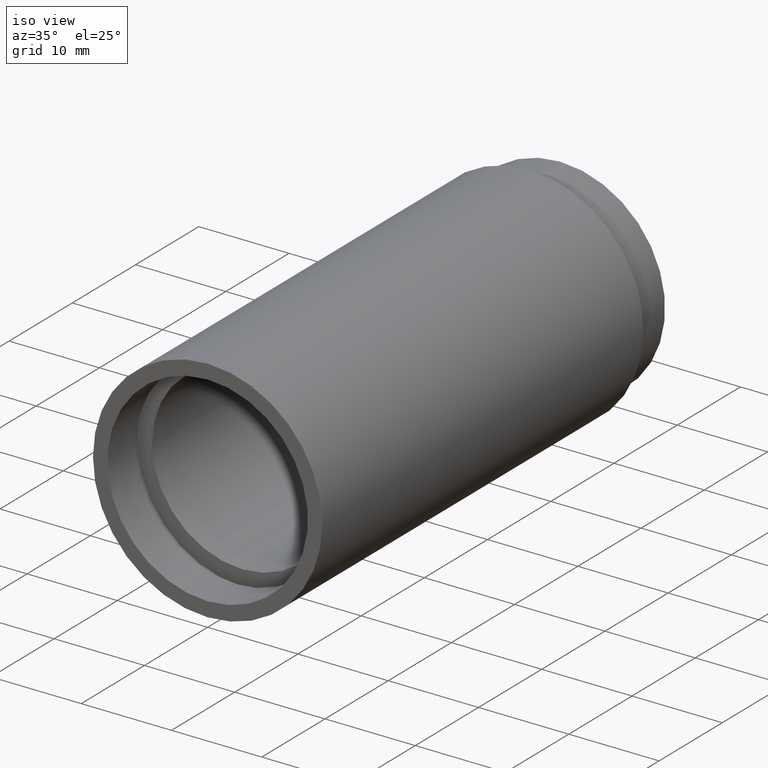
[diagram: clean part render]
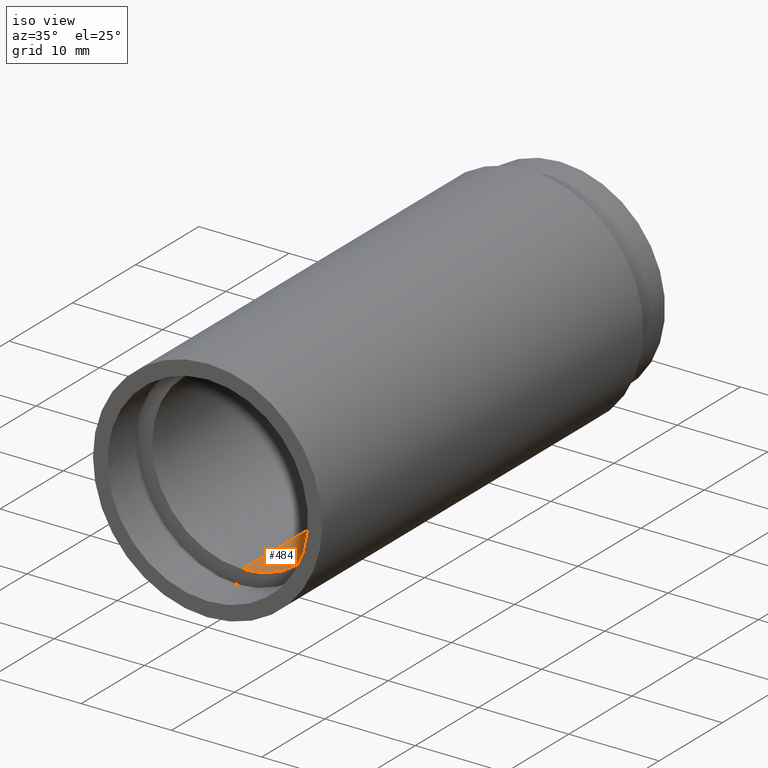
[diagram: same view with one face highlighted and labeled with its STEP entity id]
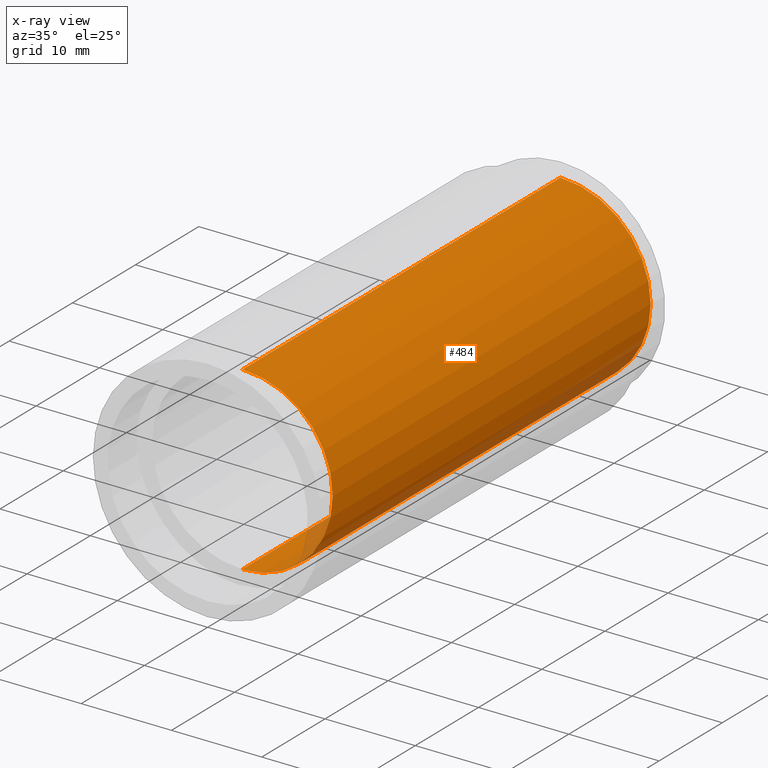
[diagram: x-ray of the same camera — body ghosted, the highlighted face saturated]
A machine part, iso view. The second image highlights one B-rep face of the part: STEP entity #484.
The next image is the same camera in x-ray: the body ghosted, the highlighted face saturated — about 5% of this face is hidden behind the body in this view.
In plain terms, the highlighted cylindrical surface (partial cylindrical patch) has radius 10 mm, axis along (-0, 1, -0).
Its self-contained STEP definition (entity closure, byte-faithful):
#71 = DIRECTION ( 'NONE',  ( -0.0000000000000000000, 1.000000000000000000, -0.0000000000000000000 ) ) ;
#98 = CIRCLE ( 'NONE', #437, 10.00000000000002000 ) ;
#100 = AXIS2_PLACEMENT_3D ( 'NONE', #161, #301, #252 ) ;
#108 = LINE ( 'NONE', #223, #478 ) ;
#126 = EDGE_CURVE ( 'NONE', #238, #365, #108, .T. ) ;
#152 = ORIENTED_EDGE ( 'NONE', *, *, #477, .T. ) ;
#161 = CARTESIAN_POINT ( 'NONE',  ( 0.0000000000000000000, 5.499999999999976900, 0.0000000000000000000 ) ) ;
#162 = DIRECTION ( 'NONE',  ( -0.0000000000000000000, 1.000000000000000000, -0.0000000000000000000 ) ) ;
#194 = ORIENTED_EDGE ( 'NONE', *, *, #586, .F. ) ;
#198 = ORIENTED_EDGE ( 'NONE', *, *, #126, .F. ) ;
#203 = CIRCLE ( 'NONE', #100, 10.00000000000002000 ) ;
#219 = DIRECTION ( 'NONE',  ( 0.0000000000000000000, 0.0000000000000000000, 1.000000000000000000 ) ) ;
#220 = CARTESIAN_POINT ( 'NONE',  ( 1.224646799147355400E-015, 55.79999999999999000, -10.00000000000002000 ) ) ;
#223 = CARTESIAN_POINT ( 'NONE',  ( 1.224646799147355400E-015, 161.3761669434274500, -10.00000000000002000 ) ) ;
#228 = DIRECTION ( 'NONE',  ( -0.0000000000000000000, 1.000000000000000000, -0.0000000000000000000 ) ) ;
#238 = VERTEX_POINT ( 'NONE', #239 ) ;
#239 = CARTESIAN_POINT ( 'NONE',  ( 1.224646799147355400E-015, 5.499999999999976900, -10.00000000000002000 ) ) ;
#252 = DIRECTION ( 'NONE',  ( 0.0000000000000000000, 0.0000000000000000000, 1.000000000000000000 ) ) ;
#257 = EDGE_CURVE ( 'NONE', #351, #435, #436, .T. ) ;
#301 = DIRECTION ( 'NONE',  ( -0.0000000000000000000, 1.000000000000000000, -0.0000000000000000000 ) ) ;
#351 = VERTEX_POINT ( 'NONE', #499 ) ;
#365 = VERTEX_POINT ( 'NONE', #220 ) ;
#406 = CARTESIAN_POINT ( 'NONE',  ( 0.0000000000000000000, 55.79999999999999000, 0.0000000000000000000 ) ) ;
#435 = VERTEX_POINT ( 'NONE', #540 ) ;
#436 = LINE ( 'NONE', #466, #542 ) ;
#437 = AXIS2_PLACEMENT_3D ( 'NONE', #406, #162, #500 ) ;
#440 = FACE_OUTER_BOUND ( 'NONE', #519, .T. ) ;
#466 = CARTESIAN_POINT ( 'NONE',  ( 0.0000000000000000000, 161.3761669434274500, 10.00000000000002000 ) ) ;
#477 = EDGE_CURVE ( 'NONE', #435, #365, #98, .T. ) ;
#478 = VECTOR ( 'NONE', #552, 1000.000000000000000 ) ;
#484 = ADVANCED_FACE ( 'NONE', ( #440 ), #493, .F. ) ;
#489 = AXIS2_PLACEMENT_3D ( 'NONE', #550, #71, #219 ) ;
#493 = CYLINDRICAL_SURFACE ( 'NONE', #489, 10.00000000000002000 ) ;
#499 = CARTESIAN_POINT ( 'NONE',  ( 0.0000000000000000000, 5.499999999999976900, 10.00000000000002000 ) ) ;
#500 = DIRECTION ( 'NONE',  ( 0.0000000000000000000, 0.0000000000000000000, 1.000000000000000000 ) ) ;
#519 = EDGE_LOOP ( 'NONE', ( #198, #194, #580, #152 ) ) ;
#540 = CARTESIAN_POINT ( 'NONE',  ( 0.0000000000000000000, 55.79999999999999000, 10.00000000000002000 ) ) ;
#542 = VECTOR ( 'NONE', #228, 1000.000000000000000 ) ;
#550 = CARTESIAN_POINT ( 'NONE',  ( 0.0000000000000000000, 161.3761669434274500, 0.0000000000000000000 ) ) ;
#552 = DIRECTION ( 'NONE',  ( -0.0000000000000000000, 1.000000000000000000, -0.0000000000000000000 ) ) ;
#580 = ORIENTED_EDGE ( 'NONE', *, *, #257, .T. ) ;
#586 = EDGE_CURVE ( 'NONE', #351, #238, #203, .T. ) ;